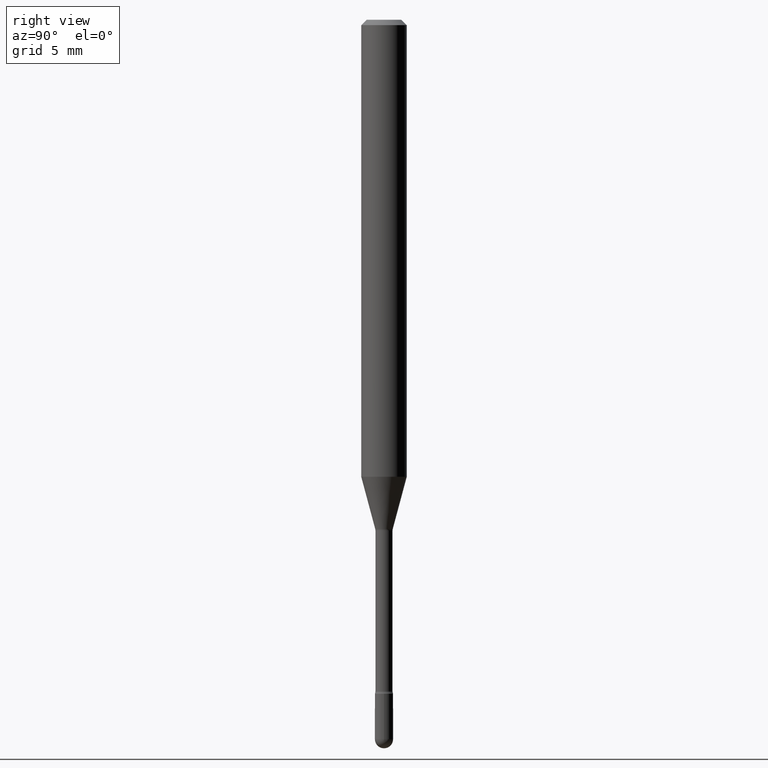
[diagram: clean part render]
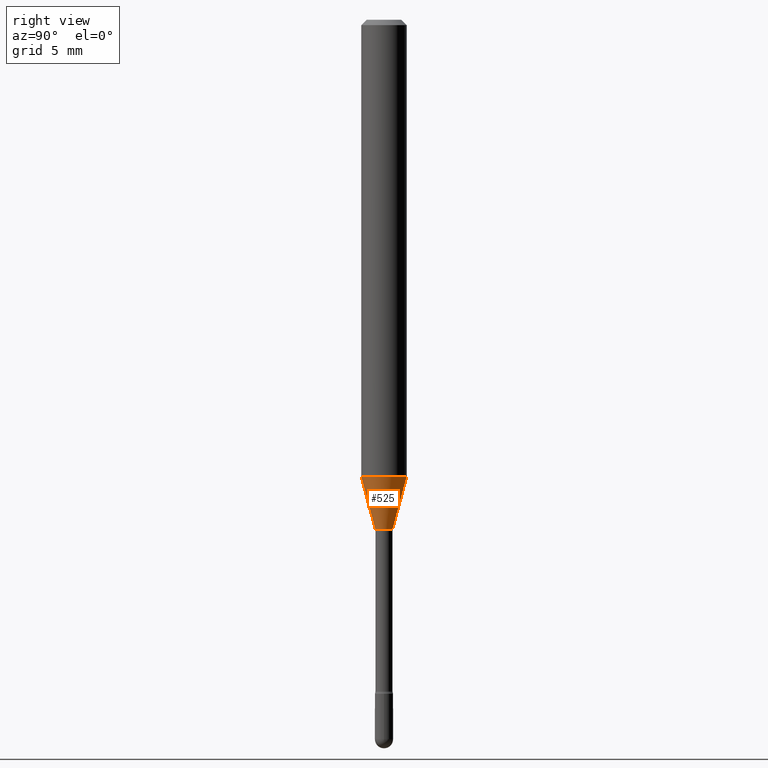
[diagram: same view with one face highlighted and labeled with its STEP entity id]
A machine part, right view. The second image highlights one B-rep face of the part: STEP entity #525.
In plain terms, the highlighted conical surface has half-angle 15 deg.
Its self-contained STEP definition (entity closure, byte-faithful):
#18 = LINE ( 'NONE', #96, #38 ) ;
#26 = DIRECTION ( 'NONE',  ( -2.445515165331157393E-29, 3.491414949907445282E-15, 1.000000000000000000 ) ) ;
#31 = DIRECTION ( 'NONE',  ( 1.839019923739601104E-15, 0.2588190451025250693, 0.9659258262890670910 ) ) ;
#38 = VECTOR ( 'NONE', #537, 39.37007874015748143 ) ;
#58 = AXIS2_PLACEMENT_3D ( 'NONE', #290, #26, #465 ) ;
#61 = CARTESIAN_POINT ( 'NONE',  ( 4.440892098500930859E-16, 0.06249999999999559380, -1.254450018504814635 ) ) ;
#85 = AXIS2_PLACEMENT_3D ( 'NONE', #115, #164, #254 ) ;
#86 = VERTEX_POINT ( 'NONE', #131 ) ;
#96 = CARTESIAN_POINT ( 'NONE',  ( -1.676687031750395996E-16, -0.02401111260566886341, -1.398092501787273179 ) ) ;
#115 = CARTESIAN_POINT ( 'NONE',  ( 3.419056415656554826E-29, -4.881321062093587157E-15, -1.398092501787273179 ) ) ;
#122 = DIRECTION ( 'NONE',  ( -6.982962677686265922E-15, -1.000000000000000000, 4.370956789862821150E-15 ) ) ;
#125 = CARTESIAN_POINT ( 'NONE',  ( 3.067776544403474457E-29, -4.379805548519381130E-15, -1.254450018504814413 ) ) ;
#131 = CARTESIAN_POINT ( 'NONE',  ( -4.364351673553610517E-16, -0.06250000000000439926, -1.254450018504814190 ) ) ;
#138 = ORIENTED_EDGE ( 'NONE', *, *, #181, .F. ) ;
#162 = FACE_OUTER_BOUND ( 'NONE', #448, .T. ) ;
#164 = DIRECTION ( 'NONE',  ( -2.445515165331157393E-29, 3.491414949907445282E-15, 1.000000000000000000 ) ) ;
#181 = EDGE_CURVE ( 'NONE', #86, #401, #302, .T. ) ;
#203 = VERTEX_POINT ( 'NONE', #270 ) ;
#204 = LINE ( 'NONE', #415, #521 ) ;
#227 = VERTEX_POINT ( 'NONE', #471 ) ;
#243 = ORIENTED_EDGE ( 'NONE', *, *, #544, .T. ) ;
#254 = DIRECTION ( 'NONE',  ( -6.982962677686265133E-15, -1.000000000000000000, 0.000000000000000000 ) ) ;
#270 = CARTESIAN_POINT ( 'NONE',  ( -1.676687031750395996E-16, -0.02401111260566886341, -1.398092501787273179 ) ) ;
#290 = CARTESIAN_POINT ( 'NONE',  ( 3.419056415656554826E-29, -4.881321062093587157E-15, -1.398092501787273179 ) ) ;
#302 = CIRCLE ( 'NONE', #309, 0.06250000000000000000 ) ;
#309 = AXIS2_PLACEMENT_3D ( 'NONE', #125, #560, #122 ) ;
#330 = ORIENTED_EDGE ( 'NONE', *, *, #468, .F. ) ;
#401 = VERTEX_POINT ( 'NONE', #61 ) ;
#415 = CARTESIAN_POINT ( 'NONE',  ( 1.706092163947572763E-16, 0.02401111260565909691, -1.398092501787273179 ) ) ;
#416 = CIRCLE ( 'NONE', #85, 0.02401111260566398189 ) ;
#423 = CONICAL_SURFACE ( 'NONE', #58, 0.02401111260566398189, 0.2617993877991502960 ) ;
#448 = EDGE_LOOP ( 'NONE', ( #243, #518, #138, #330 ) ) ;
#465 = DIRECTION ( 'NONE',  ( -6.982962677686265133E-15, -1.000000000000000000, 0.000000000000000000 ) ) ;
#468 = EDGE_CURVE ( 'NONE', #203, #86, #18, .T. ) ;
#471 = CARTESIAN_POINT ( 'NONE',  ( 3.073492131224253537E-16, 0.02401111260565909691, -1.398092501787273179 ) ) ;
#518 = ORIENTED_EDGE ( 'NONE', *, *, #554, .T. ) ;
#521 = VECTOR ( 'NONE', #31, 39.37007874015748143 ) ;
#525 = ADVANCED_FACE ( 'NONE', ( #162 ), #423, .T. ) ;
#537 = DIRECTION ( 'NONE',  ( -1.807323732225330928E-15, -0.2588190451025182970, 0.9659258262890689783 ) ) ;
#544 = EDGE_CURVE ( 'NONE', #203, #227, #416, .T. ) ;
#554 = EDGE_CURVE ( 'NONE', #227, #401, #204, .T. ) ;
#560 = DIRECTION ( 'NONE',  ( -2.445515165331157393E-29, 3.491414949907445282E-15, 1.000000000000000000 ) ) ;